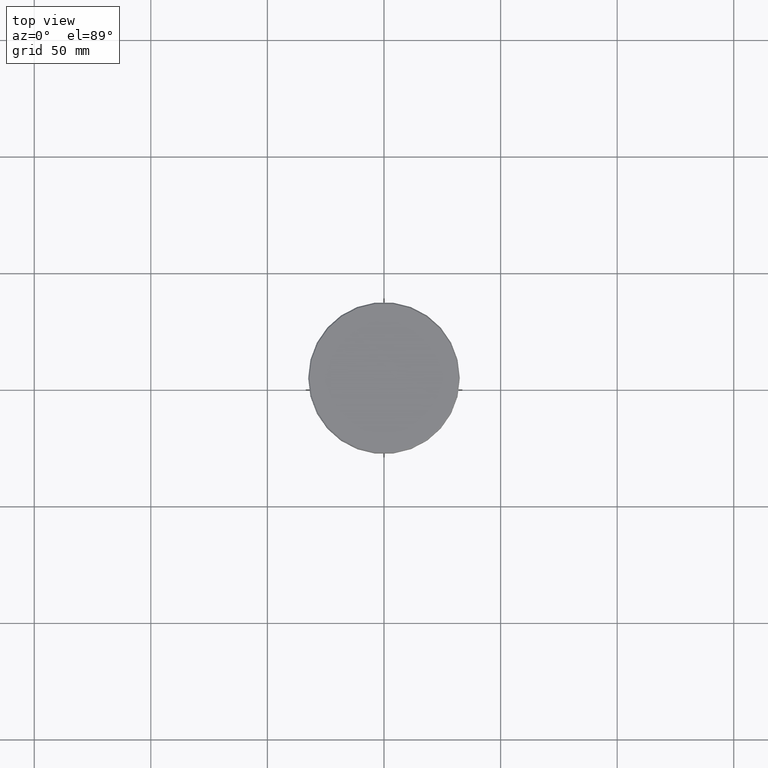
[diagram: clean part render]
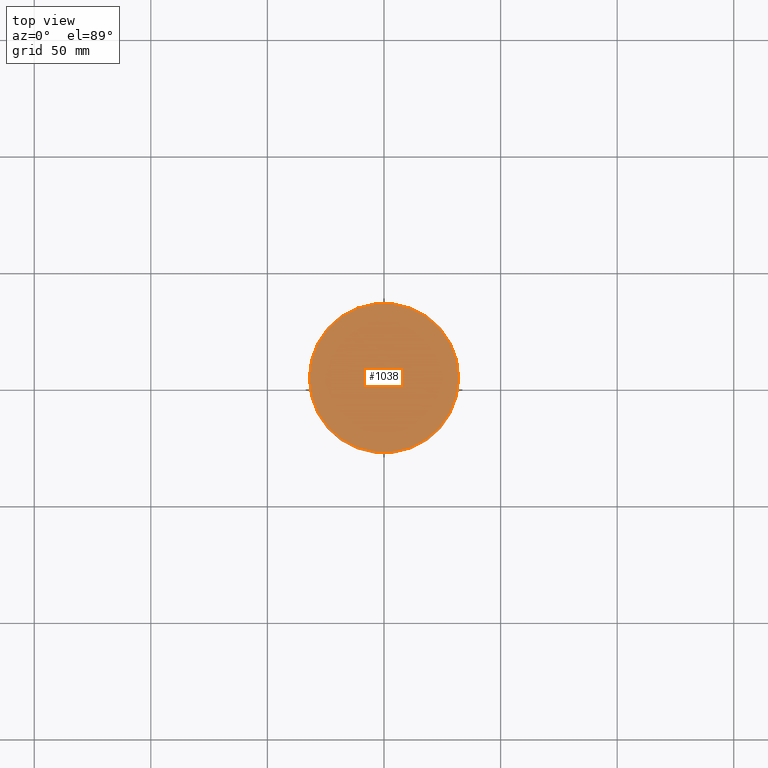
[diagram: same view with one face highlighted and labeled with its STEP entity id]
A machine part, top view. The second image highlights one B-rep face of the part: STEP entity #1038.
In plain terms, the highlighted planar face has unit normal (0, -0, 1).
Its self-contained STEP definition (entity closure, byte-faithful):
#16 = PLANE ( 'NONE',  #403 ) ;
#18 = VERTEX_POINT ( 'NONE', #395 ) ;
#250 = CARTESIAN_POINT ( 'NONE',  ( 0.000000000000000000, 0.000000000000000000, 0.000000000000000000 ) ) ;
#254 = EDGE_CURVE ( 'NONE', #678, #18, #892, .T. ) ;
#255 = DIRECTION ( 'NONE',  ( 1.000000000000000000, 0.000000000000000000, 0.000000000000000000 ) ) ;
#261 = DIRECTION ( 'NONE',  ( -0.000000000000000000, -0.000000000000000000, 1.000000000000000000 ) ) ;
#278 = EDGE_LOOP ( 'NONE', ( #829, #427 ) ) ;
#379 = AXIS2_PLACEMENT_3D ( 'NONE', #853, #1133, #683 ) ;
#395 = CARTESIAN_POINT ( 'NONE',  ( 32.00000000000002842, 3.949485927250216417E-15, 0.000000000000000000 ) ) ;
#402 = EDGE_CURVE ( 'NONE', #18, #678, #495, .T. ) ;
#403 = AXIS2_PLACEMENT_3D ( 'NONE', #913, #1106, #438 ) ;
#427 = ORIENTED_EDGE ( 'NONE', *, *, #402, .T. ) ;
#438 = DIRECTION ( 'NONE',  ( 1.000000000000000000, 0.000000000000000000, 0.000000000000000000 ) ) ;
#495 = CIRCLE ( 'NONE', #1176, 32.00000000000002842 ) ;
#550 = FACE_OUTER_BOUND ( 'NONE', #278, .T. ) ;
#678 = VERTEX_POINT ( 'NONE', #712 ) ;
#683 = DIRECTION ( 'NONE',  ( 1.000000000000000000, 0.000000000000000000, 0.000000000000000000 ) ) ;
#712 = CARTESIAN_POINT ( 'NONE',  ( -32.00000000000002842, 0.000000000000000000, 0.000000000000000000 ) ) ;
#829 = ORIENTED_EDGE ( 'NONE', *, *, #254, .T. ) ;
#853 = CARTESIAN_POINT ( 'NONE',  ( 0.000000000000000000, 0.000000000000000000, 0.000000000000000000 ) ) ;
#892 = CIRCLE ( 'NONE', #379, 32.00000000000002842 ) ;
#913 = CARTESIAN_POINT ( 'NONE',  ( 0.000000000000000000, 0.000000000000000000, 0.000000000000000000 ) ) ;
#1038 = ADVANCED_FACE ( 'NONE', ( #550 ), #16, .T. ) ;
#1106 = DIRECTION ( 'NONE',  ( 0.000000000000000000, -0.000000000000000000, 1.000000000000000000 ) ) ;
#1133 = DIRECTION ( 'NONE',  ( -0.000000000000000000, -0.000000000000000000, 1.000000000000000000 ) ) ;
#1176 = AXIS2_PLACEMENT_3D ( 'NONE', #250, #261, #255 ) ;